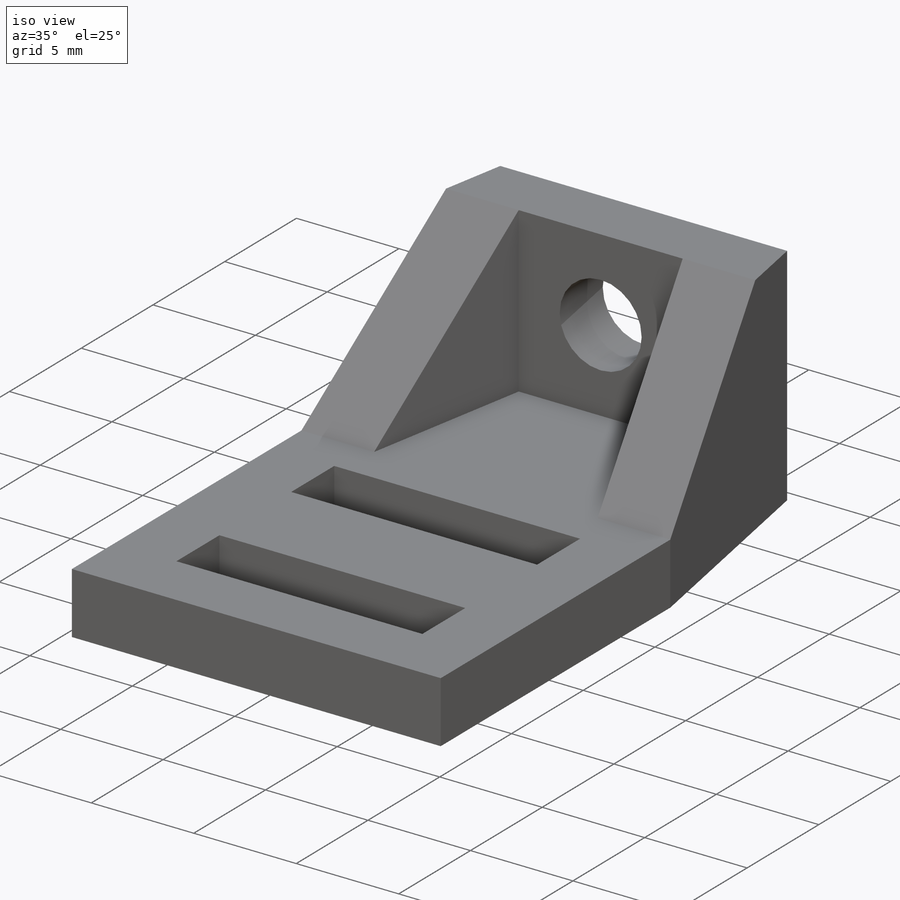
[diagram: iso view]
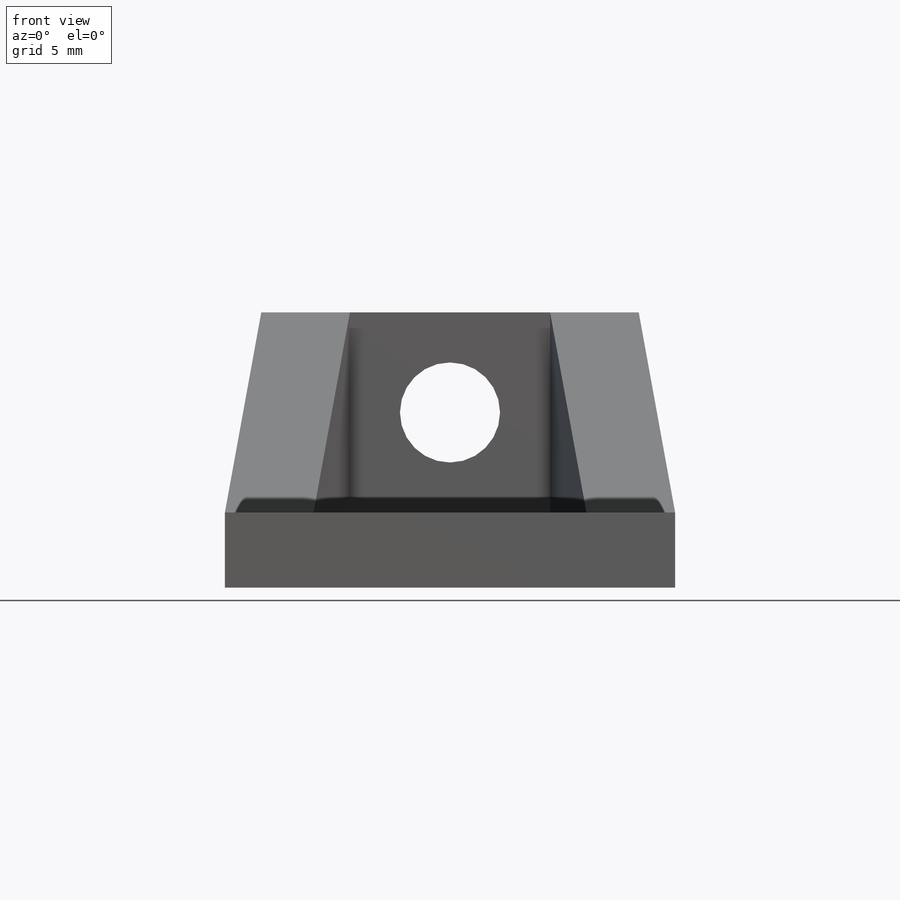
[diagram: front view]
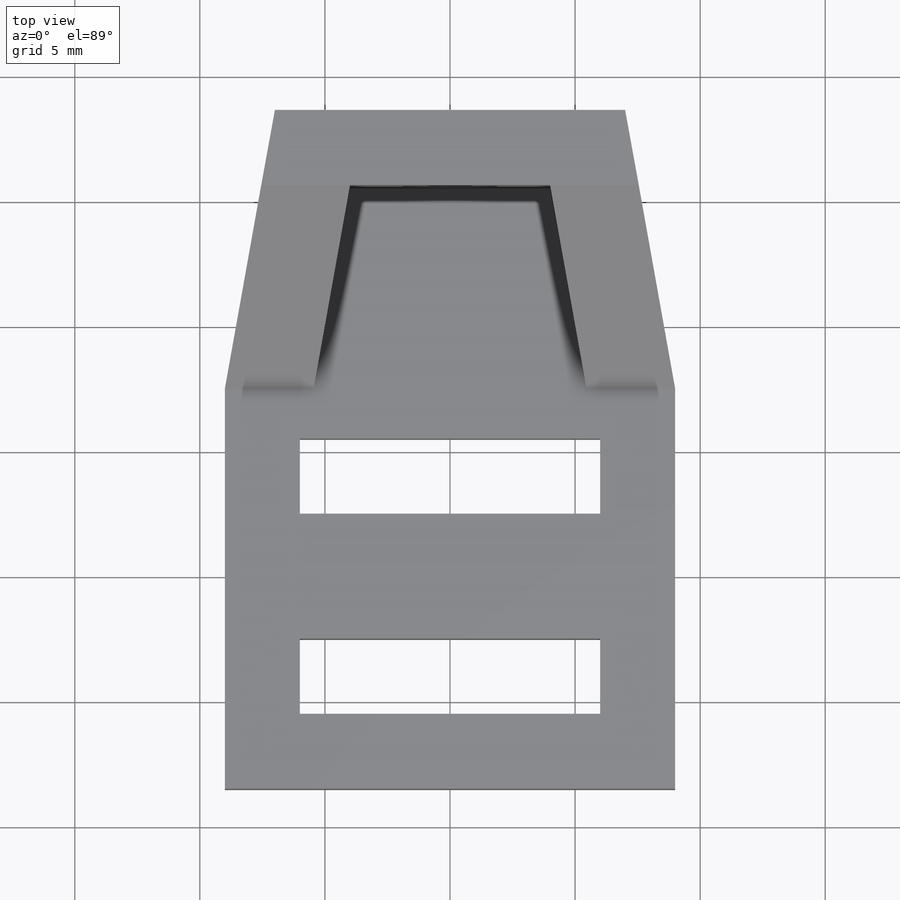
[diagram: top view]
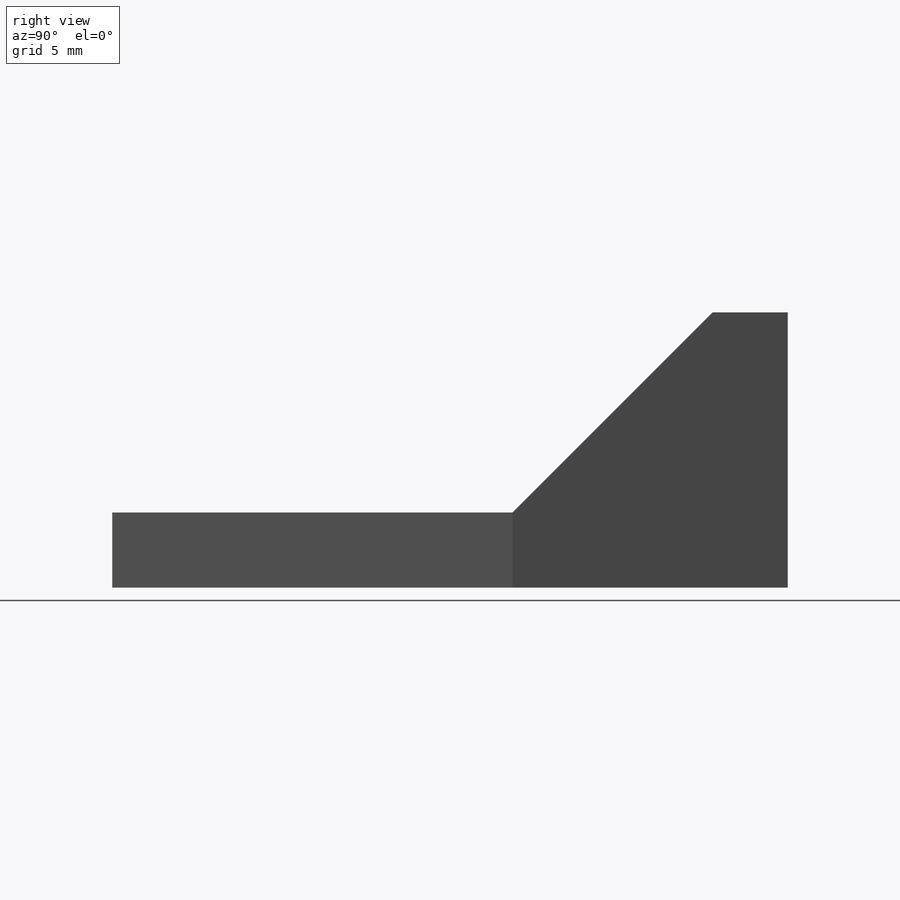
[diagram: right view]
SOLIDWORKS PART (.sldprt)
format: sldprt  version: not decoded by parser v0  size: 242,176 bytes
history: native  units: mm
features: sketch x6, plane x3, extrude x2, cut_extrude x2, material x1, hole x1 (+9 scaffold rows collapsed)
feature tree (24):
  scaffold x9  (default folders/planes/origin — collapsed)
  material  "Material <nicht festgelegt>"
  plane  "Ebene vorne"
  plane  "Ebene oben"
  plane  "Ebene rechts"
  sketch  "Skizze1"  dims[D1=18.0mm D2=27.0mm D3=14.0mm D4=2.0mm D5=11.0mm D6=11.0mm]
  extrude  "Aufsatz-Linear austragen1"  Depth=3mm
  sketch  "Skizze2"  dims[D1=3.0mm D2=3.0mm D3=3.0mm]
  extrude  "Aufsatz-Linear austragen2"  Depth=8mm
  sketch  "Skizze3"  dims[c1.D1=11.0mm c2.D1=45.0deg c2.D2=8.0mm]
  cut_extrude  "Schnitt-Linear austragen1"  [1 undecoded]
  hole  "Ø4.0 (4) Durchmesser Bohrung1"  Diameter=4mm Depth=27mm
  sketch  "Skizze5"  dims[D1=4.0mm]
  sketch  "Skizze6"  dims[hole-wizard template sketch: 59 standard entries collapsed; hole parameters kept: c18.Bohrerdurchmesser=4.0mm c18.Bohrungstiefe=27.0mm]
  sketch  "Skizze7"  dims[D1=3.0mm D2=3.0mm D3=3.0mm D4=5.0mm D5=12.0mm D6=12.0mm D7=3.0mm]
  cut_extrude  "Schnitt-Linear austragen2"  [1 undecoded]
decode coverage: 9 of 11 modeling features carry decoded parameters
note: ~ marks probable driven/reference dimensions
note: 2 parameter values undecoded
note: suppression state not decoded; provenance and decode notes live in map.json
